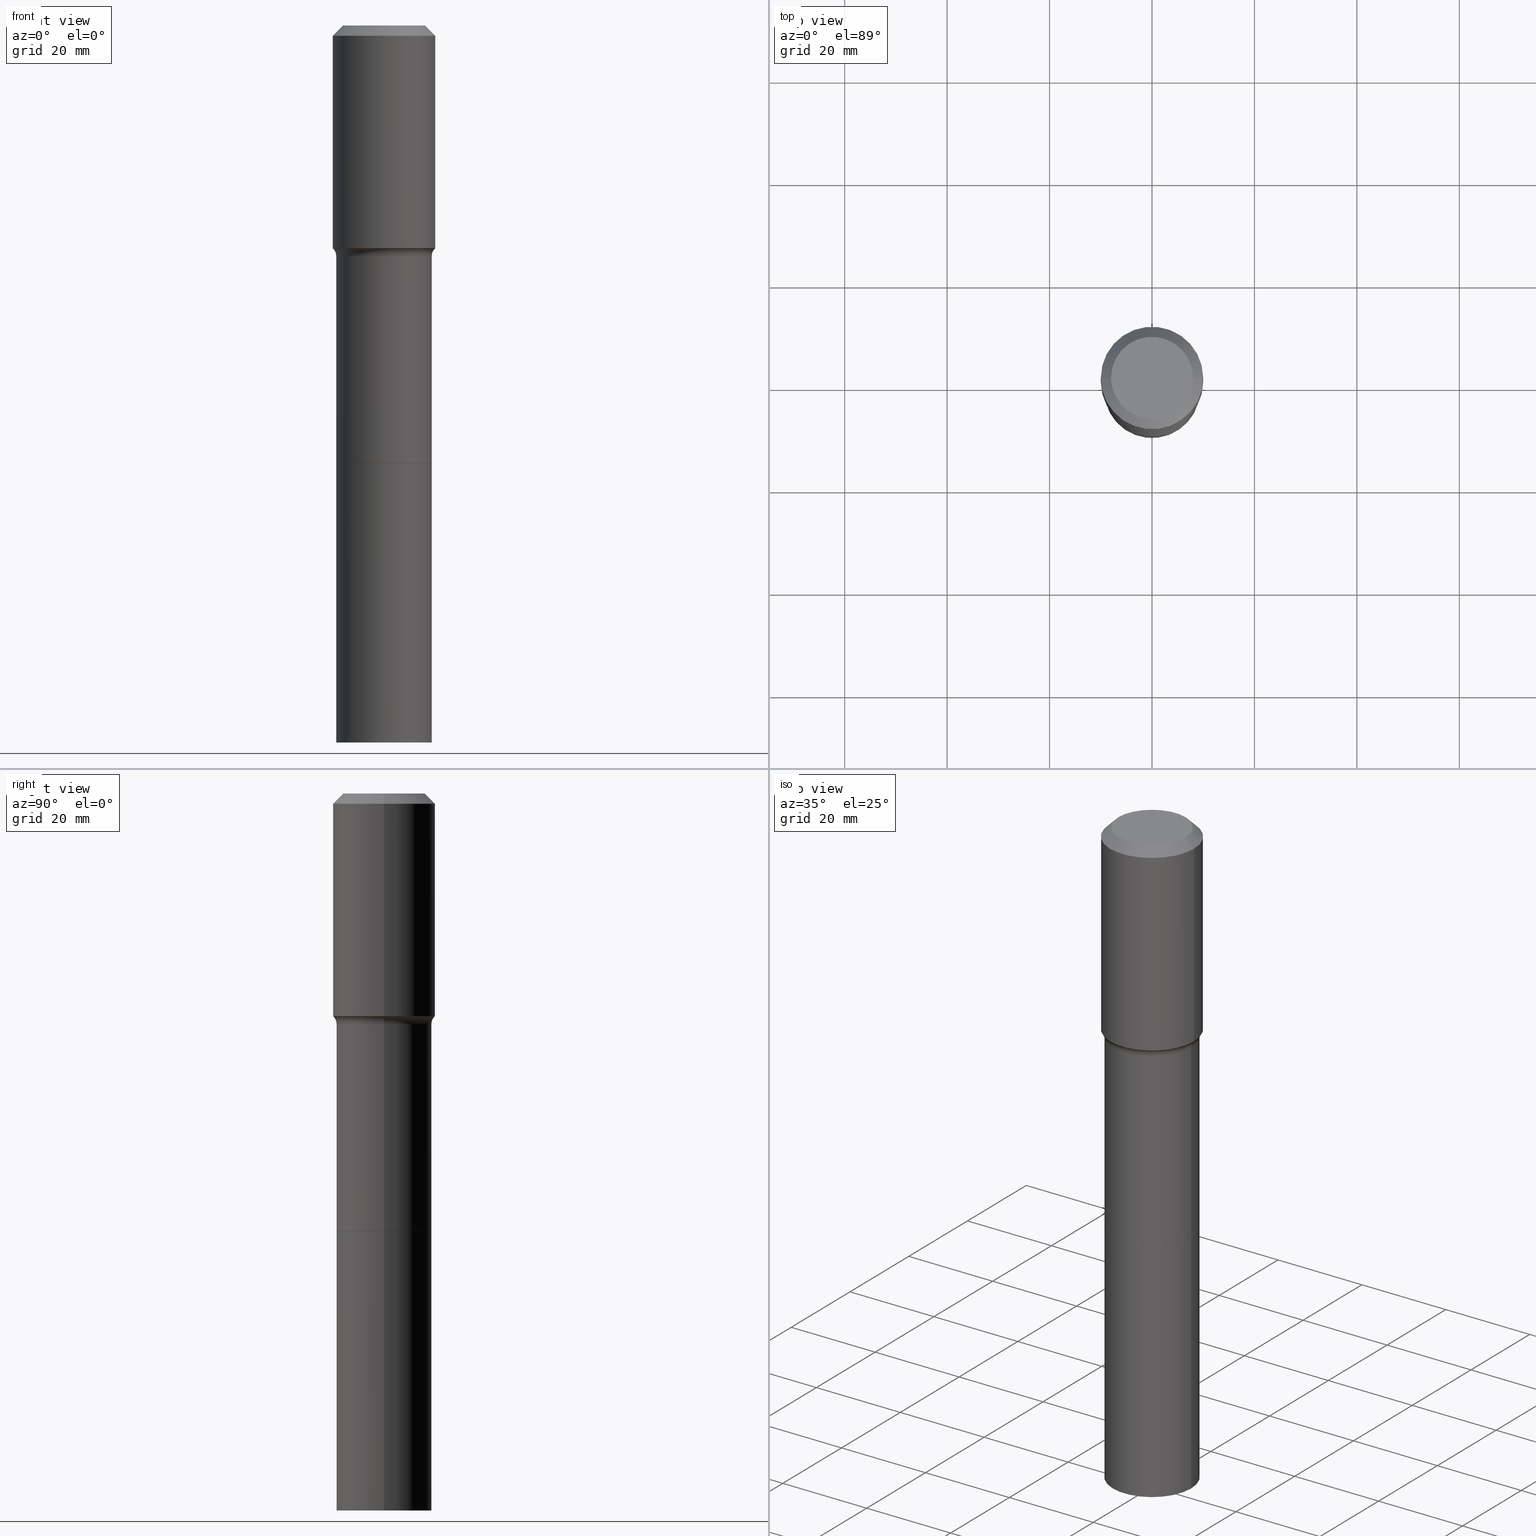
[diagram: canonical four-view strip — front | top / right | iso, engineering-drawing reading convention]
A machine part, canonical four-view strip (front | top / right | iso — engineering-drawing reading convention). The complete STEP part file that produces these views, byte-faithful:
ISO-10303-21;
HEADER;
FILE_DESCRIPTION (( 'STEP AP203' ),
    '1' );
FILE_NAME ('58860.STEP',
    '2025-04-01T15:25:52',
    ( '' ),
    ( '' ),
    'SwSTEP 2.0',
    'SolidWorks 2024',
    '' );
FILE_SCHEMA (( 'CONFIG_CONTROL_DESIGN' ));
ENDSEC;

DATA;
#1 = AXIS2_PLACEMENT_3D ( 'NONE', #187, #472, #316 ) ;
#2 = ORIENTED_EDGE ( 'NONE', *, *, #226, .F. ) ;
#3 = ORIENTED_EDGE ( 'NONE', *, *, #25, .F. ) ;
#4 = ORIENTED_EDGE ( 'NONE', *, *, #248, .T. ) ;
#5 = AXIS2_PLACEMENT_3D ( 'NONE', #227, #57, #390 ) ;
#6 = ORIENTED_EDGE ( 'NONE', *, *, #118, .T. ) ;
#7 = ADVANCED_FACE ( 'NONE', ( #381 ), #8, .F. ) ;
#8 = PLANE ( 'NONE',  #375 ) ;
#9 = CARTESIAN_POINT ( 'NONE',  ( 8.223622501439377936E-29, -1.174115344626172983E-14, -3.362800000000000011 ) ) ;
#10 = AXIS2_PLACEMENT_3D ( 'NONE', #36, #192, #350 ) ;
#11 = EDGE_CURVE ( 'NONE', #46, #237, #266, .T. ) ;
#12 = CARTESIAN_POINT ( 'NONE',  ( 8.223622501439377936E-29, -1.174115344626172983E-14, -3.362800000000000011 ) ) ;
#13 = AXIS2_PLACEMENT_3D ( 'NONE', #50, #418, #131 ) ;
#14 = CC_DESIGN_PERSON_AND_ORGANIZATION_ASSIGNMENT ( #189, #18, ( #408 ) ) ;
#15 = CARTESIAN_POINT ( 'NONE',  ( 1.925562137990189780E-30, -2.749192406205111123E-16, -0.07874000000000053179 ) ) ;
#16 = CIRCLE ( 'NONE', #80, 0.3937000000000000499 ) ;
#17 = DIRECTION ( 'NONE',  ( -2.445468806185136597E-29, 3.491481338843145583E-15, 1.000000000000000000 ) ) ;
#18 = PERSON_AND_ORGANIZATION_ROLE ( 'classification_officer' ) ;
#19 = CARTESIAN_POINT ( 'NONE',  ( 4.332881630798825211E-29, -6.186206636162284593E-15, -1.771800000000000042 ) ) ;
#20 = LINE ( 'NONE', #178, #510 ) ;
#21 = DIRECTION ( 'NONE',  ( 0.7071067811864026886, -2.468850131080739687E-15, 0.7071067811866923458 ) ) ;
#22 = APPLICATION_PROTOCOL_DEFINITION ( 'international standard', 'config_control_design', 1994, #83 ) ;
#23 = CC_DESIGN_APPROVAL ( #108, ( #347 ) ) ;
#24 = CARTESIAN_POINT ( 'NONE',  ( 0.3937000000000000499, -2.975897302343163203E-15, -0.07874000000000053179 ) ) ;
#25 = EDGE_CURVE ( 'NONE', #167, #319, #102, .T. ) ;
#26 = EDGE_CURVE ( 'NONE', #286, #44, #20, .T. ) ;
#27 = CARTESIAN_POINT ( 'NONE',  ( 1.925562137990189780E-30, -2.749192406205111123E-16, -0.07874000000000053179 ) ) ;
#28 = APPROVAL_DATE_TIME ( #147, #108 ) ;
#29 = DIRECTION ( 'NONE',  ( -2.445468806185136597E-29, 3.491481338843145583E-15, 1.000000000000000000 ) ) ;
#30 = CARTESIAN_POINT ( 'NONE',  ( 0.3671999999999998598, -8.750350531408680543E-15, -1.771800000000000042 ) ) ;
#31 = DIRECTION ( 'NONE',  ( 1.000000000000000000, -6.982962677686267499E-15, 0.000000000000000000 ) ) ;
#32 = DIRECTION ( 'NONE',  ( 0.6819983600624743847, -2.208861293262228889E-15, 0.7313537016191928863 ) ) ;
#33 = PERSON_AND_ORGANIZATION_ROLE ( 'design_supplier' ) ;
#34 = CIRCLE ( 'NONE', #71, 0.3672000000000000264 ) ;
#35 = EDGE_CURVE ( 'NONE', #477, #473, #251, .T. ) ;
#36 = CARTESIAN_POINT ( 'NONE',  ( 4.186323196284152039E-29, -5.976960033685155033E-15, -1.711869391135150131 ) ) ;
#37 = DIRECTION ( 'NONE',  ( 0.7071067811865452413, -7.319954787623248157E-15, -0.7071067811865497932 ) ) ;
#38 = PRODUCT_RELATED_PRODUCT_CATEGORY ( 'detail', '', ( #357 ) ) ;
#39 = ORIENTED_EDGE ( 'NONE', *, *, #201, .F. ) ;
#40 = ORIENTED_EDGE ( 'NONE', *, *, #92, .T. ) ;
#41 = ORGANIZATION ( 'UNSPECIFIED', 'UNSPECIFIED', '' ) ;
#42 = ADVANCED_FACE ( 'NONE', ( #180 ), #483, .T. ) ;
#43 = ORIENTED_EDGE ( 'NONE', *, *, #101, .F. ) ;
#44 = VERTEX_POINT ( 'NONE', #332 ) ;
#45 = ADVANCED_FACE ( 'NONE', ( #460 ), #256, .F. ) ;
#46 = VERTEX_POINT ( 'NONE', #216 ) ;
#47 = ORIENTED_EDGE ( 'NONE', *, *, #170, .F. ) ;
#48 = DIRECTION ( 'NONE',  ( 2.438088387897960049E-29, -3.491481338843145188E-15, -1.000000000000000000 ) ) ;
#49 = ADVANCED_FACE ( 'NONE', ( #500 ), #492, .T. ) ;
#50 = CARTESIAN_POINT ( 'NONE',  ( 0.000000000000000000, 0.000000000000000000, 0.000000000000000000 ) ) ;
#51 = LOCAL_TIME ( 11, 25, 52.00000000000000000, #105 ) ;
#52 = PERSON_AND_ORGANIZATION ( #197, #41 ) ;
#53 = DIRECTION ( 'NONE',  ( 1.000000000000000000, -6.982962677686268288E-15, 0.000000000000000000 ) ) ;
#54 = DIRECTION ( 'NONE',  ( -2.445468806185136597E-29, 3.491481338843145583E-15, 1.000000000000000000 ) ) ;
#55 = SHAPE_DEFINITION_REPRESENTATION ( #241, #291 ) ;
#56 = DIRECTION ( 'NONE',  ( 1.000000000000000000, -6.982962677686267499E-15, 4.883557194083112901E-29 ) ) ;
#57 = DIRECTION ( 'NONE',  ( -2.445468806185136597E-29, 3.491481338843145583E-15, 1.000000000000000000 ) ) ;
#58 = DIRECTION ( 'NONE',  ( -2.445468806185136597E-29, 3.491481338843145583E-15, 1.000000000000000000 ) ) ;
#59 = CARTESIAN_POINT ( 'NONE',  ( 0.3672000000000000264, -1.430355160083870506E-14, -3.362299999999999844 ) ) ;
#60 = CARTESIAN_POINT ( 'NONE',  ( -0.3672000000000000264, -1.288363721913759926E-14, -3.362800000000000011 ) ) ;
#61 = AXIS2_PLACEMENT_3D ( 'NONE', #503, #17, #501 ) ;
#62 = CARTESIAN_POINT ( 'NONE',  ( -0.3937000000000000499, -3.285328864653178671E-16, -0.07874000000000053179 ) ) ;
#63 = VECTOR ( 'NONE', #414, 39.37007874015748854 ) ;
#64 = CARTESIAN_POINT ( 'NONE',  ( 4.332881630798825211E-29, -6.186206636162284593E-15, -1.771800000000000042 ) ) ;
#65 = COORDINATED_UNIVERSAL_TIME_OFFSET ( 5, 0, .BEHIND. ) ;
#66 = DIRECTION ( 'NONE',  ( 2.438088387897960049E-29, -3.491481338843145188E-15, -1.000000000000000000 ) ) ;
#67 = CONICAL_SURFACE ( 'NONE', #130, 0.3667000000000000814, 0.7853981633972434429 ) ;
#68 = DIRECTION ( 'NONE',  ( 1.000000000000000000, -6.982962677686268288E-15, 0.000000000000000000 ) ) ;
#69 = APPROVAL_ROLE ( '' ) ;
#70 = DIRECTION ( 'NONE',  ( 1.000000000000000000, -6.982962677686265922E-15, 4.876176775795935793E-29 ) ) ;
#71 = AXIS2_PLACEMENT_3D ( 'NONE', #142, #179, #181 ) ;
#72 = DIRECTION ( 'NONE',  ( 1.000000000000000000, -6.982962677686257244E-15, 0.000000000000000000 ) ) ;
#73 = ORIENTED_EDGE ( 'NONE', *, *, #26, .T. ) ;
#74 = ADVANCED_FACE ( 'NONE', ( #491 ), #260, .T. ) ;
#75 = VERTEX_POINT ( 'NONE', #139 ) ;
#76 = AXIS2_PLACEMENT_3D ( 'NONE', #19, #58, #301 ) ;
#77 = ORIENTED_EDGE ( 'NONE', *, *, #235, .T. ) ;
#78 = ORIENTED_EDGE ( 'NONE', *, *, #262, .T. ) ;
#79 = ADVANCED_FACE ( 'NONE', ( #134 ), #124, .T. ) ;
#80 = AXIS2_PLACEMENT_3D ( 'NONE', #267, #508, #346 ) ;
#81 = ORIENTED_EDGE ( 'NONE', *, *, #476, .T. ) ;
#82 = EDGE_LOOP ( 'NONE', ( #481, #151 ) ) ;
#83 = APPLICATION_CONTEXT ( 'configuration controlled 3d designs of mechanical parts and assemblies' ) ;
#84 = CIRCLE ( 'NONE', #5, 0.3937000000000002164 ) ;
#85 = PERSON_AND_ORGANIZATION ( #197, #41 ) ;
#86 = CARTESIAN_POINT ( 'NONE',  ( -0.3672000000000002484, -9.132040520550640577E-15, -3.362800000000000011 ) ) ;
#87 = DIRECTION ( 'NONE',  ( -2.445468806185136597E-29, 3.491481338843145583E-15, 1.000000000000000000 ) ) ;
#88 = FACE_OUTER_BOUND ( 'NONE', #234, .T. ) ;
#89 = DIRECTION ( 'NONE',  ( 1.000000000000000000, -6.982962677686268288E-15, 0.000000000000000000 ) ) ;
#90 = DIRECTION ( 'NONE',  ( -2.445468806185136597E-29, 3.491481338843145583E-15, 1.000000000000000000 ) ) ;
#91 = PERSON_AND_ORGANIZATION ( #197, #41 ) ;
#92 = EDGE_CURVE ( 'NONE', #396, #361, #290, .T. ) ;
#93 = CC_DESIGN_DATE_AND_TIME_ASSIGNMENT ( #469, #462, ( #366 ) ) ;
#94 = CARTESIAN_POINT ( 'NONE',  ( 4.332881630798825211E-29, -6.186206636162284593E-15, -1.771800000000000042 ) ) ;
#95 = CARTESIAN_POINT ( 'NONE',  ( -9.427742298522567634E-47, 1.346031739168368355E-32, 3.855188123715870730E-18 ) ) ;
#96 = PERSON_AND_ORGANIZATION ( #197, #41 ) ;
#97 = CARTESIAN_POINT ( 'NONE',  ( 8.223622501439377936E-29, -1.174115344626172983E-14, -3.362800000000000011 ) ) ;
#98 = CARTESIAN_POINT ( 'NONE',  ( -0.3886917038704664207, -3.233891206026138390E-15, -1.717240131195000075 ) ) ;
#99 = APPROVAL_STATUS ( 'not_yet_approved' ) ;
#100 = DIRECTION ( 'NONE',  ( -2.445468806185136877E-29, 3.491481338843145188E-15, 1.000000000000000000 ) ) ;
#101 = EDGE_CURVE ( 'NONE', #449, #44, #174, .T. ) ;
#102 = CIRCLE ( 'NONE', #402, 0.3937000000000000499 ) ;
#103 = CONICAL_SURFACE ( 'NONE', #422, 0.3667000000000000814, 0.7853981633972434429 ) ;
#104 = DIRECTION ( 'NONE',  ( -1.000000000000000000, 6.982962677686265922E-15, -4.876176775795935793E-29 ) ) ;
#105 = COORDINATED_UNIVERSAL_TIME_OFFSET ( 5, 0, .BEHIND. ) ;
#106 = CARTESIAN_POINT ( 'NONE',  ( 8.223622501439377936E-29, -1.174115344626172983E-14, -3.362800000000000011 ) ) ;
#107 = AXIS2_PLACEMENT_3D ( 'NONE', #149, #314, #232 ) ;
#108 = APPROVAL ( #99, 'UNSPECIFIED' ) ;
#109 = ORIENTED_EDGE ( 'NONE', *, *, #35, .F. ) ;
#110 = CARTESIAN_POINT ( 'NONE',  ( 0.3671999999999999709, -2.564143895246397133E-15, 1.790532112072267385E-29 ) ) ;
#111 = ORIENTED_EDGE ( 'NONE', *, *, #177, .F. ) ;
#112 = LINE ( 'NONE', #145, #494 ) ;
#113 = APPLICATION_CONTEXT ( 'configuration controlled 3d designs of mechanical parts and assemblies' ) ;
#114 = EDGE_CURVE ( 'NONE', #322, #396, #128, .T. ) ;
#115 = ORIENTED_EDGE ( 'NONE', *, *, #170, .T. ) ;
#116 = ORIENTED_EDGE ( 'NONE', *, *, #336, .T. ) ;
#117 = ORIENTED_EDGE ( 'NONE', *, *, #114, .T. ) ;
#118 = EDGE_CURVE ( 'NONE', #312, #167, #377, .T. ) ;
#119 = VERTEX_POINT ( 'NONE', #411 ) ;
#120 = ORIENTED_EDGE ( 'NONE', *, *, #441, .T. ) ;
#121 = ORIENTED_EDGE ( 'NONE', *, *, #441, .F. ) ;
#122 = CARTESIAN_POINT ( 'NONE',  ( 0.3886917038704664207, -8.709931533633647583E-15, -1.717240131195000075 ) ) ;
#123 = APPROVAL_DATE_TIME ( #370, #331 ) ;
#124 = CYLINDRICAL_SURFACE ( 'NONE', #453, 0.3671999999999999709 ) ;
#125 = AXIS2_PLACEMENT_3D ( 'NONE', #394, #426, #104 ) ;
#126 = CLOSED_SHELL ( 'NONE', ( #213, #49, #404, #420, #45, #79, #194, #399, #42, #74, #497, #7, #150, #127 ) ) ;
#127 = ADVANCED_FACE ( 'NONE', ( #211 ), #103, .T. ) ;
#128 = CIRCLE ( 'NONE', #429, 0.3886917038704665872 ) ;
#129 = DIRECTION ( 'NONE',  ( 1.000000000000000000, -6.982962677686265922E-15, 0.000000000000000000 ) ) ;
#130 = AXIS2_PLACEMENT_3D ( 'NONE', #97, #435, #395 ) ;
#131 = DIRECTION ( 'NONE',  ( 1.000000000000000000, -6.982962677686266711E-15, 4.876176775795935793E-29 ) ) ;
#132 = CARTESIAN_POINT ( 'NONE',  ( 4.199457173566644320E-29, -5.995711872379898111E-15, -1.717240131195000075 ) ) ;
#133 =( NAMED_UNIT ( * ) SI_UNIT ( $, .STERADIAN. ) SOLID_ANGLE_UNIT ( ) );
#134 = FACE_OUTER_BOUND ( 'NONE', #452, .T. ) ;
#135 = EDGE_CURVE ( 'NONE', #237, #46, #413, .T. ) ;
#136 = CARTESIAN_POINT ( 'NONE',  ( 8.223622501439377936E-29, -1.174115344626172983E-14, -3.362800000000000011 ) ) ;
#137 = PERSON_AND_ORGANIZATION_ROLE ( 'creator' ) ;
#138 = CIRCLE ( 'NONE', #233, 0.3149600000000000177 ) ;
#139 = CARTESIAN_POINT ( 'NONE',  ( 0.3672000000000004150, -2.180849073868205104E-14, -5.511800000000000033 ) ) ;
#140 = CARTESIAN_POINT ( 'NONE',  ( 0.3937000000000001054, -2.749192406205084005E-15, 1.919750796630860452E-29 ) ) ;
#141 = DIRECTION ( 'NONE',  ( -1.000000000000000000, 7.105427357601001859E-15, 0.000000000000000000 ) ) ;
#142 = CARTESIAN_POINT ( 'NONE',  ( 8.222399767036285134E-29, -1.173940770559230754E-14, -3.362299999999999844 ) ) ;
#143 = CALENDAR_DATE ( 2025, 1, 4 ) ;
#144 = EDGE_CURVE ( 'NONE', #473, #119, #392, .T. ) ;
#145 = CARTESIAN_POINT ( 'NONE',  ( -0.3667000000000000814, -9.135593234229442264E-15, -3.362800000000000011 ) ) ;
#146 = CARTESIAN_POINT ( 'NONE',  ( 0.3667000000000000814, -1.430180586016928277E-14, -3.362800000000000011 ) ) ;
#147 = DATE_AND_TIME ( #427, #247 ) ;
#148 = CIRCLE ( 'NONE', #264, 0.3672000000000000264 ) ;
#149 = CARTESIAN_POINT ( 'NONE',  ( 8.223622501439377936E-29, -1.174115344626172983E-14, -3.362800000000000011 ) ) ;
#150 = ADVANCED_FACE ( 'NONE', ( #388 ), #304, .F. ) ;
#151 = ORIENTED_EDGE ( 'NONE', *, *, #412, .T. ) ;
#152 = DIRECTION ( 'NONE',  ( 1.000000000000000000, -6.982962677686264344E-15, 0.000000000000000000 ) ) ;
#153 = ORIENTED_EDGE ( 'NONE', *, *, #373, .T. ) ;
#154 = CARTESIAN_POINT ( 'NONE',  ( 0.3937000000000002164, -8.726152439890239038E-15, -1.711869391135150131 ) ) ;
#155 = VECTOR ( 'NONE', #32, 39.37007874015748854 ) ;
#156 = ORIENTED_EDGE ( 'NONE', *, *, #512, .T. ) ;
#157 = AXIS2_PLACEMENT_3D ( 'NONE', #371, #333, #489 ) ;
#158 = ORIENTED_EDGE ( 'NONE', *, *, #451, .F. ) ;
#159 = AXIS2_PLACEMENT_3D ( 'NONE', #502, #223, #141 ) ;
#160 = ORIENTED_EDGE ( 'NONE', *, *, #464, .T. ) ;
#161 = ORIENTED_EDGE ( 'NONE', *, *, #225, .T. ) ;
#162 = APPROVAL_PERSON_ORGANIZATION ( #300, #249, #69 ) ;
#163 = EDGE_LOOP ( 'NONE', ( #445, #321 ) ) ;
#164 = ORIENTED_EDGE ( 'NONE', *, *, #323, .F. ) ;
#165 = ORIENTED_EDGE ( 'NONE', *, *, #318, .F. ) ;
#166 = ORIENTED_EDGE ( 'NONE', *, *, #248, .F. ) ;
#167 = VERTEX_POINT ( 'NONE', #62 ) ;
#168 = CALENDAR_DATE ( 2025, 1, 4 ) ;
#169 = ORIENTED_EDGE ( 'NONE', *, *, #451, .T. ) ;
#170 = EDGE_CURVE ( 'NONE', #396, #44, #313, .T. ) ;
#171 = DIRECTION ( 'NONE',  ( -2.445468806185136877E-29, 3.491481338843145188E-15, 1.000000000000000000 ) ) ;
#172 = APPROVAL_PERSON_ORGANIZATION ( #52, #331, #409 ) ;
#173 = CARTESIAN_POINT ( 'NONE',  ( 0.000000000000000000, 0.000000000000000000, 0.000000000000000000 ) ) ;
#174 = CIRCLE ( 'NONE', #359, 0.3671999999999998598 ) ;
#175 = CARTESIAN_POINT ( 'NONE',  ( 4.199457173566644320E-29, -5.995711872379898111E-15, -1.717240131195000075 ) ) ;
#176 =( LENGTH_UNIT ( ) NAMED_UNIT ( * ) SI_UNIT ( $, .METRE. ) );
#177 = EDGE_CURVE ( 'NONE', #477, #75, #279, .T. ) ;
#178 = CARTESIAN_POINT ( 'NONE',  ( -0.3671999999999999709, 2.609112925711087676E-15, -1.806232965141601217E-29 ) ) ;
#179 = DIRECTION ( 'NONE',  ( -2.445468806185136597E-29, 3.491481338843145583E-15, 1.000000000000000000 ) ) ;
#180 = FACE_OUTER_BOUND ( 'NONE', #365, .T. ) ;
#181 = DIRECTION ( 'NONE',  ( 1.000000000000000000, -6.982962677686269077E-15, 0.000000000000000000 ) ) ;
#182 = MECHANICAL_CONTEXT ( 'NONE', #83, 'mechanical' ) ;
#183 = PLANE ( 'NONE',  #378 ) ;
#184 = DIRECTION ( 'NONE',  ( 2.445468806185136597E-29, -3.491481338843145583E-15, -1.000000000000000000 ) ) ;
#185 = CALENDAR_DATE ( 2025, 1, 4 ) ;
#186 = AXIS2_PLACEMENT_3D ( 'NONE', #12, #278, #152 ) ;
#187 = CARTESIAN_POINT ( 'NONE',  ( 0.000000000000000000, 0.000000000000000000, 0.000000000000000000 ) ) ;
#188 = PLANE ( 'NONE',  #125 ) ;
#189 = PERSON_AND_ORGANIZATION ( #197, #41 ) ;
#190 = DIRECTION ( 'NONE',  ( -6.982962677686266711E-15, -1.000000000000000000, 3.491481338843145583E-15 ) ) ;
#191 = CARTESIAN_POINT ( 'NONE',  ( -0.3672000000000004150, -1.288363721913759611E-14, -5.511800000000000033 ) ) ;
#192 = DIRECTION ( 'NONE',  ( -2.445468806185136597E-29, 3.491481338843145583E-15, 1.000000000000000000 ) ) ;
#193 = CYLINDRICAL_SURFACE ( 'NONE', #484, 0.3672000000000002484 ) ;
#194 = ADVANCED_FACE ( 'NONE', ( #475 ), #343, .T. ) ;
#195 = AXIS2_PLACEMENT_3D ( 'NONE', #106, #467, #70 ) ;
#196 = VERTEX_POINT ( 'NONE', #154 ) ;
#197 = PERSON ( 'UNSPECIFIED', 'UNSPECIFIED', 'UNSPECIFIED', ('UNSPECIFIED'), ('UNSPECIFIED'), ('UNSPECIFIED') ) ;
#198 = VERTEX_POINT ( 'NONE', #59 ) ;
#199 = CLOSED_SHELL ( 'NONE', ( #389, #272, #285, #457 ) ) ;
#200 = VECTOR ( 'NONE', #250, 39.37007874015748143 ) ;
#201 = EDGE_CURVE ( 'NONE', #198, #449, #433, .T. ) ;
#202 = ORIENTED_EDGE ( 'NONE', *, *, #101, .T. ) ;
#203 = ORIENTED_EDGE ( 'NONE', *, *, #25, .T. ) ;
#204 = AXIS2_PLACEMENT_3D ( 'NONE', #505, #190, #72 ) ;
#205 = ORIENTED_EDGE ( 'NONE', *, *, #225, .F. ) ;
#206 = AXIS2_PLACEMENT_3D ( 'NONE', #132, #90, #68 ) ;
#207 = ORIENTED_EDGE ( 'NONE', *, *, #356, .T. ) ;
#208 = LOCAL_TIME ( 11, 25, 52.00000000000000000, #367 ) ;
#209 = DIRECTION ( 'NONE',  ( -2.445468806185136597E-29, 3.491481338843145583E-15, 1.000000000000000000 ) ) ;
#210 = DIRECTION ( 'NONE',  ( -2.445468806185136597E-29, 3.491481338843145583E-15, 1.000000000000000000 ) ) ;
#211 = FACE_OUTER_BOUND ( 'NONE', #410, .T. ) ;
#212 = DIRECTION ( 'NONE',  ( -2.445468806185136597E-29, 3.491481338843145583E-15, 1.000000000000000000 ) ) ;
#213 = ADVANCED_FACE ( 'NONE', ( #340 ), #67, .T. ) ;
#214 = DIRECTION ( 'NONE',  ( 1.000000000000000000, -6.982962677686267499E-15, 4.876176775795935793E-29 ) ) ;
#215 = DIRECTION ( 'NONE',  ( 1.000000000000000000, -6.982962677686269077E-15, 0.000000000000000000 ) ) ;
#216 = CARTESIAN_POINT ( 'NONE',  ( 0.3667000000000000814, -1.430180586016928277E-14, -3.362800000000000011 ) ) ;
#217 = CARTESIAN_POINT ( 'NONE',  ( 8.223622501439377936E-29, -1.174115344626172983E-14, -3.362800000000000011 ) ) ;
#218 = DATE_AND_TIME ( #228, #289 ) ;
#219 =( NAMED_UNIT ( * ) PLANE_ANGLE_UNIT ( ) SI_UNIT ( $, .RADIAN. ) );
#220 = CARTESIAN_POINT ( 'NONE',  ( -0.3937000000000001054, 2.797406750687515181E-15, -1.936584745033357016E-29 ) ) ;
#221 = AXIS2_PLACEMENT_3D ( 'NONE', #27, #184, #463 ) ;
#222 = FACE_OUTER_BOUND ( 'NONE', #351, .T. ) ;
#223 = DIRECTION ( 'NONE',  ( 7.105427357601001859E-15, 1.000000000000000000, -3.491481338843145583E-15 ) ) ;
#224 = CIRCLE ( 'NONE', #10, 0.3937000000000002164 ) ;
#225 = EDGE_CURVE ( 'NONE', #243, #319, #478, .T. ) ;
#226 = EDGE_CURVE ( 'NONE', #322, #449, #293, .T. ) ;
#227 = CARTESIAN_POINT ( 'NONE',  ( 4.186323196284152039E-29, -5.976960033685155033E-15, -1.711869391135150131 ) ) ;
#228 = CALENDAR_DATE ( 2025, 1, 4 ) ;
#229 = CARTESIAN_POINT ( 'NONE',  ( 8.223622501439377936E-29, -1.174115344626172983E-14, -3.362800000000000011 ) ) ;
#230 = DIRECTION ( 'NONE',  ( 1.000000000000000000, -6.982962677686269077E-15, 0.000000000000000000 ) ) ;
#231 = DIMENSIONAL_EXPONENTS ( 1.000000000000000000, 0.000000000000000000, 0.000000000000000000, 0.000000000000000000, 0.000000000000000000, 0.000000000000000000, 0.000000000000000000 ) ;
#232 = DIRECTION ( 'NONE',  ( 1.000000000000000000, -6.982962677686269077E-15, 0.000000000000000000 ) ) ;
#233 = AXIS2_PLACEMENT_3D ( 'NONE', #95, #498, #461 ) ;
#234 = EDGE_LOOP ( 'NONE', ( #117, #40, #398, #246 ) ) ;
#235 = EDGE_CURVE ( 'NONE', #237, #286, #112, .T. ) ;
#236 = DIRECTION ( 'NONE',  ( -0.7071067811864026886, 7.493145998869830357E-15, 0.7071067811866923458 ) ) ;
#237 = VERTEX_POINT ( 'NONE', #397 ) ;
#238 = CC_DESIGN_PERSON_AND_ORGANIZATION_ASSIGNMENT ( #85, #137, ( #366 ) ) ;
#239 = EDGE_LOOP ( 'NONE', ( #165, #115, #156, #2 ) ) ;
#240 = EDGE_LOOP ( 'NONE', ( #109, #509, #116, #324 ) ) ;
#241 = PRODUCT_DEFINITION_SHAPE ( 'NONE', 'NONE',  #366 ) ;
#242 = ORIENTED_EDGE ( 'NONE', *, *, #464, .F. ) ;
#243 = VERTEX_POINT ( 'NONE', #306 ) ;
#244 = VECTOR ( 'NONE', #37, 39.37007874015748143 ) ;
#245 = ORIENTED_EDGE ( 'NONE', *, *, #311, .T. ) ;
#246 = ORIENTED_EDGE ( 'NONE', *, *, #476, .F. ) ;
#247 = LOCAL_TIME ( 11, 25, 52.00000000000000000, #387 ) ;
#248 = EDGE_CURVE ( 'NONE', #361, #167, #470, .T. ) ;
#249 = APPROVAL ( #339, 'UNSPECIFIED' ) ;
#250 = DIRECTION ( 'NONE',  ( -0.7071067811865452413, 2.468850131082233000E-15, -0.7071067811865497932 ) ) ;
#251 = LINE ( 'NONE', #86, #282 ) ;
#252 = PERSON_AND_ORGANIZATION_ROLE ( 'design_owner' ) ;
#253 = DIRECTION ( 'NONE',  ( -2.445468806185136597E-29, 3.491481338843145583E-15, 1.000000000000000000 ) ) ;
#254 = FACE_OUTER_BOUND ( 'NONE', #447, .T. ) ;
#255 = CC_DESIGN_DATE_AND_TIME_ASSIGNMENT ( #342, #380, ( #408 ) ) ;
#256 = TOROIDAL_SURFACE ( 'NONE', #309, 0.4471999999999999309, 0.08000000000000002942 ) ;
#257 = CARTESIAN_POINT ( 'NONE',  ( 8.223622501439377936E-29, -1.174115344626172983E-14, -3.362800000000000011 ) ) ;
#258 = DIRECTION ( 'NONE',  ( 1.000000000000000000, -6.982962677686265922E-15, 4.876223630392693006E-29 ) ) ;
#259 = LENGTH_MEASURE_WITH_UNIT ( LENGTH_MEASURE( 0.02539999999999999897 ), #176 );
#260 = CYLINDRICAL_SURFACE ( 'NONE', #13, 0.3937000000000001054 ) ;
#261 = FACE_OUTER_BOUND ( 'NONE', #437, .T. ) ;
#262 = EDGE_CURVE ( 'NONE', #319, #167, #16, .T. ) ;
#263 = CARTESIAN_POINT ( 'NONE',  ( 1.347893496593123646E-28, -1.924434684343564878E-14, -5.511800000000000033 ) ) ;
#264 = AXIS2_PLACEMENT_3D ( 'NONE', #217, #382, #230 ) ;
#265 = DIRECTION ( 'NONE',  ( 1.000000000000000000, -6.982962677686267499E-15, 4.883557194083112901E-29 ) ) ;
#266 = CIRCLE ( 'NONE', #329, 0.3667000000000000814 ) ;
#267 = CARTESIAN_POINT ( 'NONE',  ( 1.925562137990189780E-30, -2.749192406205111123E-16, -0.07874000000000053179 ) ) ;
#268 = CYLINDRICAL_SURFACE ( 'NONE', #61, 0.3937000000000001054 ) ;
#269 = VECTOR ( 'NONE', #100, 39.37007874015748143 ) ;
#270 = FACE_OUTER_BOUND ( 'NONE', #240, .T. ) ;
#271 = DESIGN_CONTEXT ( 'detailed design', #113, 'design' ) ;
#272 = ADVANCED_FACE ( 'NONE', ( #385 ), #183, .T. ) ;
#273 = ORIENTED_EDGE ( 'NONE', *, *, #318, .T. ) ;
#274 = DIRECTION ( 'NONE',  ( -2.445468806185136877E-29, 3.491481338843145188E-15, 1.000000000000000000 ) ) ;
#275 = CC_DESIGN_APPROVAL ( #249, ( #408 ) ) ;
#276 = EDGE_LOOP ( 'NONE', ( #443, #153, #362, #513 ) ) ;
#277 = CC_DESIGN_PERSON_AND_ORGANIZATION_ASSIGNMENT ( #345, #33, ( #347 ) ) ;
#278 = DIRECTION ( 'NONE',  ( -2.445468806185136597E-29, 3.491481338843145583E-15, 1.000000000000000000 ) ) ;
#279 = CIRCLE ( 'NONE', #455, 0.3672000000000004150 ) ;
#280 = AXIS2_PLACEMENT_3D ( 'NONE', #288, #506, #258 ) ;
#281 = ORIENTED_EDGE ( 'NONE', *, *, #92, .F. ) ;
#282 = VECTOR ( 'NONE', #171, 39.37007874015748143 ) ;
#283 = ORIENTED_EDGE ( 'NONE', *, *, #144, .T. ) ;
#284 = UNCERTAINTY_MEASURE_WITH_UNIT (LENGTH_MEASURE( 1.000000000000000082E-05 ), #424, 'distance_accuracy_value', 'NONE');
#285 = ADVANCED_FACE ( 'NONE', ( #270 ), #193, .T. ) ;
#286 = VERTEX_POINT ( 'NONE', #310 ) ;
#287 = EDGE_LOOP ( 'NONE', ( #440, #111 ) ) ;
#288 = CARTESIAN_POINT ( 'NONE',  ( -9.427742298522567634E-47, 1.346031739168368355E-32, 3.855188123715870730E-18 ) ) ;
#289 = LOCAL_TIME ( 11, 25, 52.00000000000000000, #504 ) ;
#290 = LINE ( 'NONE', #292, #63 ) ;
#291 = ADVANCED_BREP_SHAPE_REPRESENTATION ( '58860', ( #348, #352, #417 ), #442 ) ;
#292 = CARTESIAN_POINT ( 'NONE',  ( -0.3886917038704665872, -3.233891206026137601E-15, -1.717240131195000075 ) ) ;
#293 = CIRCLE ( 'NONE', #204, 0.08000000000000002942 ) ;
#294 = PERSON_AND_ORGANIZATION ( #197, #41 ) ;
#295 = ORIENTED_EDGE ( 'NONE', *, *, #35, .T. ) ;
#296 = CARTESIAN_POINT ( 'NONE',  ( 1.347893496593123646E-28, -1.924434684343564878E-14, -5.511800000000000033 ) ) ;
#297 = CIRCLE ( 'NONE', #76, 0.3671999999999998598 ) ;
#298 = CARTESIAN_POINT ( 'NONE',  ( 0.000000000000000000, 0.000000000000000000, 0.000000000000000000 ) ) ;
#299 = CARTESIAN_POINT ( 'NONE',  ( 8.222399767036285134E-29, -1.173940770559230754E-14, -3.362299999999999844 ) ) ;
#300 = PERSON_AND_ORGANIZATION ( #197, #41 ) ;
#301 = DIRECTION ( 'NONE',  ( 1.000000000000000000, -6.982962677686268288E-15, 0.000000000000000000 ) ) ;
#302 = DIRECTION ( 'NONE',  ( -2.445468806185136597E-29, 3.491481338843145583E-15, 1.000000000000000000 ) ) ;
#303 = DIRECTION ( 'NONE',  ( -2.445468806185136877E-29, 3.491481338843145188E-15, 1.000000000000000000 ) ) ;
#304 = PLANE ( 'NONE',  #195 ) ;
#305 = DIRECTION ( 'NONE',  ( -2.445468806185136597E-29, 3.491481338843145583E-15, 1.000000000000000000 ) ) ;
#306 = CARTESIAN_POINT ( 'NONE',  ( 0.3149600000000000177, -2.568339875860642378E-15, 3.855188123732540039E-18 ) ) ;
#307 = CARTESIAN_POINT ( 'NONE',  ( 0.3886917038704665872, -8.709931533633649161E-15, -1.717240131195000075 ) ) ;
#308 = SECURITY_CLASSIFICATION_LEVEL ( 'unclassified' ) ;
#309 = AXIS2_PLACEMENT_3D ( 'NONE', #94, #421, #56 ) ;
#310 = CARTESIAN_POINT ( 'NONE',  ( -0.3672000000000000264, -6.353694245166206812E-15, -3.362299999999999844 ) ) ;
#311 = EDGE_CURVE ( 'NONE', #196, #361, #224, .T. ) ;
#312 = VERTEX_POINT ( 'NONE', #515 ) ;
#313 = CIRCLE ( 'NONE', #159, 0.08000000000000002942 ) ;
#314 = DIRECTION ( 'NONE',  ( -2.445468806185136597E-29, 3.491481338843145583E-15, 1.000000000000000000 ) ) ;
#315 = ORIENTED_EDGE ( 'NONE', *, *, #235, .F. ) ;
#316 = DIRECTION ( 'NONE',  ( 1.000000000000000000, -6.982962677686267499E-15, 4.876176775795935793E-29 ) ) ;
#317 = CONICAL_SURFACE ( 'NONE', #221, 0.3937000000000000499, 0.7853981633974450594 ) ;
#318 = EDGE_CURVE ( 'NONE', #396, #322, #364, .T. ) ;
#319 = VERTEX_POINT ( 'NONE', #372 ) ;
#320 = VECTOR ( 'NONE', #471, 39.37007874015748143 ) ;
#321 = ORIENTED_EDGE ( 'NONE', *, *, #135, .F. ) ;
#322 = VERTEX_POINT ( 'NONE', #122 ) ;
#323 = EDGE_CURVE ( 'NONE', #312, #243, #330, .T. ) ;
#324 = ORIENTED_EDGE ( 'NONE', *, *, #144, .F. ) ;
#325 = ORIENTED_EDGE ( 'NONE', *, *, #412, .F. ) ;
#326 = DIRECTION ( 'NONE',  ( -1.000000000000000000, 6.982962677686265922E-15, -4.876176775795935793E-29 ) ) ;
#327 = VECTOR ( 'NONE', #21, 39.37007874015748143 ) ;
#328 = DIRECTION ( 'NONE',  ( 1.000000000000000000, -6.982962677686264344E-15, 0.000000000000000000 ) ) ;
#329 = AXIS2_PLACEMENT_3D ( 'NONE', #257, #335, #328 ) ;
#330 = CIRCLE ( 'NONE', #280, 0.3149600000000000177 ) ;
#331 = APPROVAL ( #482, 'UNSPECIFIED' ) ;
#332 = CARTESIAN_POINT ( 'NONE',  ( -0.3671999999999998598, -6.353694245166207601E-15, -1.771800000000000042 ) ) ;
#333 = DIRECTION ( 'NONE',  ( 2.445468806185136597E-29, -3.491481338843145583E-15, -1.000000000000000000 ) ) ;
#334 = CONICAL_SURFACE ( 'NONE', #206, 0.3886917038704665872, 0.7504915783575287769 ) ;
#335 = DIRECTION ( 'NONE',  ( -2.445468806185136597E-29, 3.491481338843145583E-15, 1.000000000000000000 ) ) ;
#336 = EDGE_CURVE ( 'NONE', #75, #119, #468, .T. ) ;
#337 = CC_DESIGN_PERSON_AND_ORGANIZATION_ASSIGNMENT ( #96, #432, ( #347 ) ) ;
#338 = LINE ( 'NONE', #140, #438 ) ;
#339 = APPROVAL_STATUS ( 'not_yet_approved' ) ;
#340 = FACE_OUTER_BOUND ( 'NONE', #444, .T. ) ;
#341 = LINE ( 'NONE', #307, #155 ) ;
#342 = DATE_AND_TIME ( #185, #51 ) ;
#343 = CYLINDRICAL_SURFACE ( 'NONE', #1, 0.3671999999999999709 ) ;
#344 = CARTESIAN_POINT ( 'NONE',  ( 0.3672000000000002484, -1.430529734150812736E-14, -3.362800000000000011 ) ) ;
#345 = PERSON_AND_ORGANIZATION ( #197, #41 ) ;
#346 = DIRECTION ( 'NONE',  ( 1.000000000000000000, -6.982962677686265922E-15, 0.000000000000000000 ) ) ;
#347 = PRODUCT_DEFINITION_FORMATION_WITH_SPECIFIED_SOURCE ( 'ANY', '', #357, .NOT_KNOWN. ) ;
#348 = MANIFOLD_SOLID_BREP ( 'Body-Move/Copy2[1]', #199 ) ;
#349 = ORIENTED_EDGE ( 'NONE', *, *, #488, .F. ) ;
#350 = DIRECTION ( 'NONE',  ( 1.000000000000000000, -6.982962677686266711E-15, 0.000000000000000000 ) ) ;
#351 = EDGE_LOOP ( 'NONE', ( #205, #164, #6, #203 ) ) ;
#352 = MANIFOLD_SOLID_BREP ( 'Body-Move/Copy2[2]', #126 ) ;
#353 = DIRECTION ( 'NONE',  ( -2.445468806185136597E-29, 3.491481338843145583E-15, 1.000000000000000000 ) ) ;
#354 = ORIENTED_EDGE ( 'NONE', *, *, #336, .F. ) ;
#355 = AXIS2_PLACEMENT_3D ( 'NONE', #296, #386, #495 ) ;
#356 = EDGE_CURVE ( 'NONE', #198, #286, #516, .T. ) ;
#357 = PRODUCT ( '58860', '58860', '', ( #182 ) ) ;
#358 = ORIENTED_EDGE ( 'NONE', *, *, #114, .F. ) ;
#359 = AXIS2_PLACEMENT_3D ( 'NONE', #456, #493, #53 ) ;
#360 = EDGE_LOOP ( 'NONE', ( #245, #4, #485, #349 ) ) ;
#361 = VERTEX_POINT ( 'NONE', #466 ) ;
#362 = ORIENTED_EDGE ( 'NONE', *, *, #201, .T. ) ;
#363 = CIRCLE ( 'NONE', #355, 0.3672000000000004150 ) ;
#364 = CIRCLE ( 'NONE', #514, 0.3886917038704665872 ) ;
#365 = EDGE_LOOP ( 'NONE', ( #281, #273, #81, #121 ) ) ;
#366 = PRODUCT_DEFINITION ( 'UNKNOWN', '', #347, #271 ) ;
#367 = COORDINATED_UNIVERSAL_TIME_OFFSET ( 5, 0, .BEHIND. ) ;
#368 = DIRECTION ( 'NONE',  ( 1.000000000000000000, -6.982962677686268288E-15, 0.000000000000000000 ) ) ;
#369 = DIRECTION ( 'NONE',  ( 1.000000000000000000, -6.982962677686268288E-15, 0.000000000000000000 ) ) ;
#370 = DATE_AND_TIME ( #168, #208 ) ;
#371 = CARTESIAN_POINT ( 'NONE',  ( 1.925562137990189780E-30, -2.749192406205111123E-16, -0.07874000000000053179 ) ) ;
#372 = CARTESIAN_POINT ( 'NONE',  ( 0.3937000000000000499, -3.024111646825594378E-15, -0.07874000000000053179 ) ) ;
#373 = EDGE_CURVE ( 'NONE', #286, #198, #34, .T. ) ;
#374 = DIRECTION ( 'NONE',  ( 1.000000000000000000, -6.982962677686264344E-15, 0.000000000000000000 ) ) ;
#375 = AXIS2_PLACEMENT_3D ( 'NONE', #465, #48, #326 ) ;
#376 = DIRECTION ( 'NONE',  ( 1.000000000000000000, 0.000000000000000000, 0.000000000000000000 ) ) ;
#377 = LINE ( 'NONE', #454, #200 ) ;
#378 = AXIS2_PLACEMENT_3D ( 'NONE', #430, #66, #511 ) ;
#379 = FACE_OUTER_BOUND ( 'NONE', #448, .T. ) ;
#380 = DATE_TIME_ROLE ( 'classification_date' ) ;
#381 = FACE_OUTER_BOUND ( 'NONE', #82, .T. ) ;
#382 = DIRECTION ( 'NONE',  ( -2.445468806185136597E-29, 3.491481338843145583E-15, 1.000000000000000000 ) ) ;
#383 = APPROVAL_ROLE ( '' ) ;
#384 = AXIS2_PLACEMENT_3D ( 'NONE', #64, #431, #265 ) ;
#385 = FACE_OUTER_BOUND ( 'NONE', #287, .T. ) ;
#386 = DIRECTION ( 'NONE',  ( -2.445468806185136597E-29, 3.491481338843145583E-15, 1.000000000000000000 ) ) ;
#387 = COORDINATED_UNIVERSAL_TIME_OFFSET ( 5, 0, .BEHIND. ) ;
#388 = FACE_OUTER_BOUND ( 'NONE', #163, .T. ) ;
#389 = ADVANCED_FACE ( 'NONE', ( #379 ), #423, .T. ) ;
#390 = DIRECTION ( 'NONE',  ( 1.000000000000000000, -6.982962677686266711E-15, 0.000000000000000000 ) ) ;
#391 = APPROVAL_DATE_TIME ( #218, #249 ) ;
#392 = CIRCLE ( 'NONE', #107, 0.3672000000000000264 ) ;
#393 = DIRECTION ( 'NONE',  ( 1.000000000000000000, -6.982962677686265133E-15, 0.000000000000000000 ) ) ;
#394 = CARTESIAN_POINT ( 'NONE',  ( 8.223622501439377936E-29, -1.174115344626172983E-14, -3.362800000000000011 ) ) ;
#395 = DIRECTION ( 'NONE',  ( 1.000000000000000000, -6.982962677686264344E-15, 0.000000000000000000 ) ) ;
#396 = VERTEX_POINT ( 'NONE', #98 ) ;
#397 = CARTESIAN_POINT ( 'NONE',  ( -0.3667000000000000814, -9.132944007055330274E-15, -3.362800000000000011 ) ) ;
#398 = ORIENTED_EDGE ( 'NONE', *, *, #311, .F. ) ;
#399 = ADVANCED_FACE ( 'NONE', ( #261 ), #499, .F. ) ;
#400 = EDGE_LOOP ( 'NONE', ( #166, #120, #517, #3 ) ) ;
#401 = CC_DESIGN_SECURITY_CLASSIFICATION ( #408, ( #347 ) ) ;
#402 = AXIS2_PLACEMENT_3D ( 'NONE', #15, #253, #129 ) ;
#403 = AXIS2_PLACEMENT_3D ( 'NONE', #175, #87, #89 ) ;
#404 = ADVANCED_FACE ( 'NONE', ( #428 ), #268, .T. ) ;
#405 = ORIENTED_EDGE ( 'NONE', *, *, #226, .T. ) ;
#406 = CC_DESIGN_PERSON_AND_ORGANIZATION_ASSIGNMENT ( #294, #252, ( #357 ) ) ;
#407 = ORIENTED_EDGE ( 'NONE', *, *, #356, .F. ) ;
#408 = SECURITY_CLASSIFICATION ( '', '', #308 ) ;
#409 = APPROVAL_ROLE ( '' ) ;
#410 = EDGE_LOOP ( 'NONE', ( #315, #415, #160, #518 ) ) ;
#411 = CARTESIAN_POINT ( 'NONE',  ( 0.3672000000000000264, -1.430529734150812736E-14, -3.362800000000000011 ) ) ;
#412 = EDGE_CURVE ( 'NONE', #243, #312, #138, .T. ) ;
#413 = CIRCLE ( 'NONE', #186, 0.3667000000000000814 ) ;
#414 = DIRECTION ( 'NONE',  ( -0.6819983600624743847, 7.399397606724193491E-15, 0.7313537016191928863 ) ) ;
#415 = ORIENTED_EDGE ( 'NONE', *, *, #135, .T. ) ;
#416 = APPLICATION_PROTOCOL_DEFINITION ( 'international standard', 'config_control_design', 1994, #113 ) ;
#417 = AXIS2_PLACEMENT_3D ( 'NONE', #173, #459, #376 ) ;
#418 = DIRECTION ( 'NONE',  ( -2.445468806185136597E-29, 3.491481338843145583E-15, 1.000000000000000000 ) ) ;
#419 = LINE ( 'NONE', #146, #327 ) ;
#420 = ADVANCED_FACE ( 'NONE', ( #88 ), #334, .T. ) ;
#421 = DIRECTION ( 'NONE',  ( -2.445468806185136597E-29, 3.491481338843145583E-15, 1.000000000000000000 ) ) ;
#422 = AXIS2_PLACEMENT_3D ( 'NONE', #9, #212, #374 ) ;
#423 = CYLINDRICAL_SURFACE ( 'NONE', #490, 0.3672000000000002484 ) ;
#424 =( CONVERSION_BASED_UNIT ( 'INCH', #259 ) LENGTH_UNIT ( ) NAMED_UNIT ( #231 ) );
#425 = CARTESIAN_POINT ( 'NONE',  ( 4.199457173566644320E-29, -5.995711872379898111E-15, -1.717240131195000075 ) ) ;
#426 = DIRECTION ( 'NONE',  ( 2.438088387897960049E-29, -3.491481338843145188E-15, -1.000000000000000000 ) ) ;
#427 = CALENDAR_DATE ( 2025, 1, 4 ) ;
#428 = FACE_OUTER_BOUND ( 'NONE', #360, .T. ) ;
#429 = AXIS2_PLACEMENT_3D ( 'NONE', #425, #210, #368 ) ;
#430 = CARTESIAN_POINT ( 'NONE',  ( 1.347893496593123646E-28, -1.924434684343564878E-14, -5.511800000000000033 ) ) ;
#431 = DIRECTION ( 'NONE',  ( -2.445468806185136597E-29, 3.491481338843145583E-15, 1.000000000000000000 ) ) ;
#432 = PERSON_AND_ORGANIZATION_ROLE ( 'creator' ) ;
#433 = LINE ( 'NONE', #110, #474 ) ;
#434 = EDGE_LOOP ( 'NONE', ( #325, #161, #78, #487 ) ) ;
#435 = DIRECTION ( 'NONE',  ( -2.445468806185136597E-29, 3.491481338843145583E-15, 1.000000000000000000 ) ) ;
#436 = CC_DESIGN_APPROVAL ( #331, ( #366 ) ) ;
#437 = EDGE_LOOP ( 'NONE', ( #47, #358, #405, #202 ) ) ;
#438 = VECTOR ( 'NONE', #303, 39.37007874015748143 ) ;
#439 = EDGE_CURVE ( 'NONE', #75, #477, #363, .T. ) ;
#440 = ORIENTED_EDGE ( 'NONE', *, *, #439, .F. ) ;
#441 = EDGE_CURVE ( 'NONE', #361, #196, #84, .T. ) ;
#442 =( GEOMETRIC_REPRESENTATION_CONTEXT ( 3 ) GLOBAL_UNCERTAINTY_ASSIGNED_CONTEXT ( ( #284 ) ) GLOBAL_UNIT_ASSIGNED_CONTEXT ( ( #424, #219, #133 ) ) REPRESENTATION_CONTEXT ( 'NONE', 'WORKASPACE' ) );
#443 = ORIENTED_EDGE ( 'NONE', *, *, #26, .F. ) ;
#444 = EDGE_LOOP ( 'NONE', ( #486, #77, #407, #242 ) ) ;
#445 = ORIENTED_EDGE ( 'NONE', *, *, #11, .F. ) ;
#446 = CARTESIAN_POINT ( 'NONE',  ( 4.199457173566644320E-29, -5.995711872379898111E-15, -1.717240131195000075 ) ) ;
#447 = EDGE_LOOP ( 'NONE', ( #169, #283 ) ) ;
#448 = EDGE_LOOP ( 'NONE', ( #480, #295, #158, #354 ) ) ;
#449 = VERTEX_POINT ( 'NONE', #30 ) ;
#450 = LOCAL_TIME ( 11, 25, 52.00000000000000000, #65 ) ;
#451 = EDGE_CURVE ( 'NONE', #119, #473, #148, .T. ) ;
#452 = EDGE_LOOP ( 'NONE', ( #207, #73, #43, #39 ) ) ;
#453 = AXIS2_PLACEMENT_3D ( 'NONE', #298, #302, #214 ) ;
#454 = CARTESIAN_POINT ( 'NONE',  ( -0.3937000000000000499, 2.474273165584572449E-15, -0.07874000000000053179 ) ) ;
#455 = AXIS2_PLACEMENT_3D ( 'NONE', #263, #29, #31 ) ;
#456 = CARTESIAN_POINT ( 'NONE',  ( 4.332881630798825211E-29, -6.186206636162284593E-15, -1.771800000000000042 ) ) ;
#457 = ADVANCED_FACE ( 'NONE', ( #254 ), #188, .F. ) ;
#458 = DIRECTION ( 'NONE',  ( 1.000000000000000000, -6.982962677686265133E-15, 0.000000000000000000 ) ) ;
#459 = DIRECTION ( 'NONE',  ( 0.000000000000000000, 0.000000000000000000, 1.000000000000000000 ) ) ;
#460 = FACE_OUTER_BOUND ( 'NONE', #239, .T. ) ;
#461 = DIRECTION ( 'NONE',  ( 1.000000000000000000, -6.982962677686265922E-15, 4.876223630392693006E-29 ) ) ;
#462 = DATE_TIME_ROLE ( 'creation_date' ) ;
#463 = DIRECTION ( 'NONE',  ( -1.000000000000000000, 6.982962677686265922E-15, 0.000000000000000000 ) ) ;
#464 = EDGE_CURVE ( 'NONE', #46, #198, #419, .T. ) ;
#465 = CARTESIAN_POINT ( 'NONE',  ( -4.713871149261283817E-47, 6.730158695841841775E-33, 1.927594061857935365E-18 ) ) ;
#466 = CARTESIAN_POINT ( 'NONE',  ( -0.3937000000000002164, -3.179553282997638274E-15, -1.711869391135150131 ) ) ;
#467 = DIRECTION ( 'NONE',  ( -2.438088387897960049E-29, 3.491481338843145188E-15, 1.000000000000000000 ) ) ;
#468 = LINE ( 'NONE', #344, #320 ) ;
#469 = DATE_AND_TIME ( #143, #450 ) ;
#470 = LINE ( 'NONE', #220, #269 ) ;
#471 = DIRECTION ( 'NONE',  ( -2.445468806185136877E-29, 3.491481338843145188E-15, 1.000000000000000000 ) ) ;
#472 = DIRECTION ( 'NONE',  ( -2.445468806185136597E-29, 3.491481338843145583E-15, 1.000000000000000000 ) ) ;
#473 = VERTEX_POINT ( 'NONE', #60 ) ;
#474 = VECTOR ( 'NONE', #274, 39.37007874015748143 ) ;
#475 = FACE_OUTER_BOUND ( 'NONE', #276, .T. ) ;
#476 = EDGE_CURVE ( 'NONE', #322, #196, #341, .T. ) ;
#477 = VERTEX_POINT ( 'NONE', #191 ) ;
#478 = LINE ( 'NONE', #24, #244 ) ;
#479 = AXIS2_PLACEMENT_3D ( 'NONE', #299, #54, #215 ) ;
#480 = ORIENTED_EDGE ( 'NONE', *, *, #439, .T. ) ;
#481 = ORIENTED_EDGE ( 'NONE', *, *, #323, .T. ) ;
#482 = APPROVAL_STATUS ( 'not_yet_approved' ) ;
#483 = CONICAL_SURFACE ( 'NONE', #403, 0.3886917038704665872, 0.7504915783575287769 ) ;
#484 = AXIS2_PLACEMENT_3D ( 'NONE', #229, #353, #393 ) ;
#485 = ORIENTED_EDGE ( 'NONE', *, *, #262, .F. ) ;
#486 = ORIENTED_EDGE ( 'NONE', *, *, #11, .T. ) ;
#487 = ORIENTED_EDGE ( 'NONE', *, *, #118, .F. ) ;
#488 = EDGE_CURVE ( 'NONE', #196, #319, #338, .T. ) ;
#489 = DIRECTION ( 'NONE',  ( -1.000000000000000000, 6.982962677686265922E-15, 0.000000000000000000 ) ) ;
#490 = AXIS2_PLACEMENT_3D ( 'NONE', #136, #305, #458 ) ;
#491 = FACE_OUTER_BOUND ( 'NONE', #400, .T. ) ;
#492 = CONICAL_SURFACE ( 'NONE', #157, 0.3937000000000000499, 0.7853981633974450594 ) ;
#493 = DIRECTION ( 'NONE',  ( -2.445468806185136597E-29, 3.491481338843145583E-15, 1.000000000000000000 ) ) ;
#494 = VECTOR ( 'NONE', #236, 39.37007874015748143 ) ;
#495 = DIRECTION ( 'NONE',  ( 1.000000000000000000, -6.982962677686267499E-15, 0.000000000000000000 ) ) ;
#496 = DIRECTION ( 'NONE',  ( -2.445468806185136877E-29, 3.491481338843145188E-15, 1.000000000000000000 ) ) ;
#497 = ADVANCED_FACE ( 'NONE', ( #222 ), #317, .T. ) ;
#498 = DIRECTION ( 'NONE',  ( -2.445468806185136597E-29, 3.491481338843145583E-15, 1.000000000000000000 ) ) ;
#499 = TOROIDAL_SURFACE ( 'NONE', #384, 0.4471999999999999309, 0.08000000000000002942 ) ;
#500 = FACE_OUTER_BOUND ( 'NONE', #434, .T. ) ;
#501 = DIRECTION ( 'NONE',  ( 1.000000000000000000, -6.982962677686266711E-15, 4.876176775795935793E-29 ) ) ;
#502 = CARTESIAN_POINT ( 'NONE',  ( -0.4471999999999999309, -3.008659521843117053E-15, -1.771800000000000042 ) ) ;
#503 = CARTESIAN_POINT ( 'NONE',  ( 0.000000000000000000, 0.000000000000000000, 0.000000000000000000 ) ) ;
#504 = COORDINATED_UNIVERSAL_TIME_OFFSET ( 5, 0, .BEHIND. ) ;
#505 = CARTESIAN_POINT ( 'NONE',  ( 0.4471999999999999309, -9.308987545623582195E-15, -1.771800000000000042 ) ) ;
#506 = DIRECTION ( 'NONE',  ( -2.445468806185136597E-29, 3.491481338843145583E-15, 1.000000000000000000 ) ) ;
#507 = APPROVAL_PERSON_ORGANIZATION ( #91, #108, #383 ) ;
#508 = DIRECTION ( 'NONE',  ( -2.445468806185136597E-29, 3.491481338843145583E-15, 1.000000000000000000 ) ) ;
#509 = ORIENTED_EDGE ( 'NONE', *, *, #177, .T. ) ;
#510 = VECTOR ( 'NONE', #496, 39.37007874015748143 ) ;
#511 = DIRECTION ( 'NONE',  ( -1.000000000000000000, 6.982962677686265922E-15, -4.876176775795935793E-29 ) ) ;
#512 = EDGE_CURVE ( 'NONE', #44, #449, #297, .T. ) ;
#513 = ORIENTED_EDGE ( 'NONE', *, *, #512, .F. ) ;
#514 = AXIS2_PLACEMENT_3D ( 'NONE', #446, #209, #369 ) ;
#515 = CARTESIAN_POINT ( 'NONE',  ( -0.3149600000000000177, 2.336813545274319235E-15, 3.855188123700009542E-18 ) ) ;
#516 = CIRCLE ( 'NONE', #479, 0.3672000000000000264 ) ;
#517 = ORIENTED_EDGE ( 'NONE', *, *, #488, .T. ) ;
#518 = ORIENTED_EDGE ( 'NONE', *, *, #373, .F. ) ;
ENDSEC;
END-ISO-10303-21;
